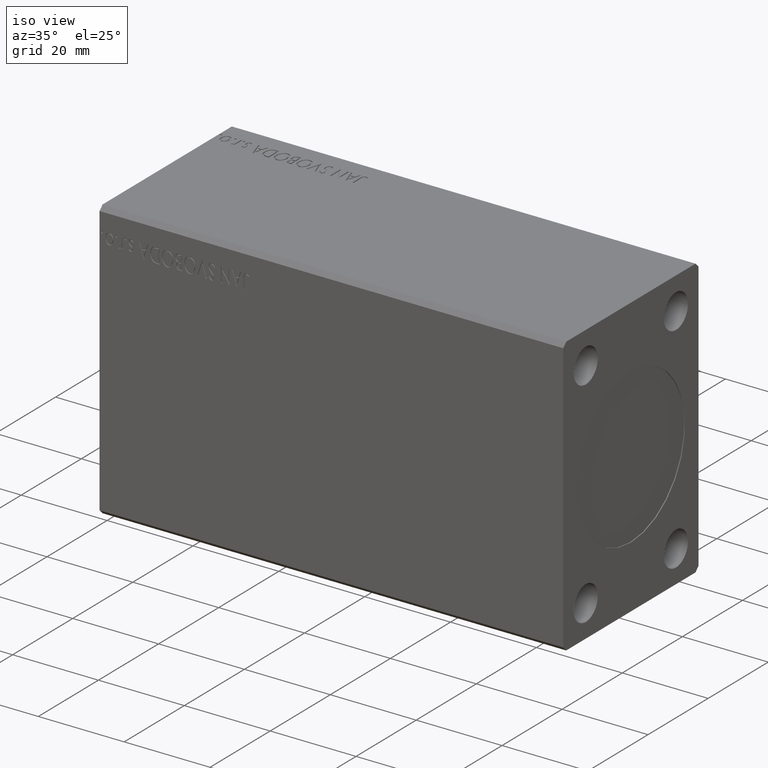
[diagram: clean part render]
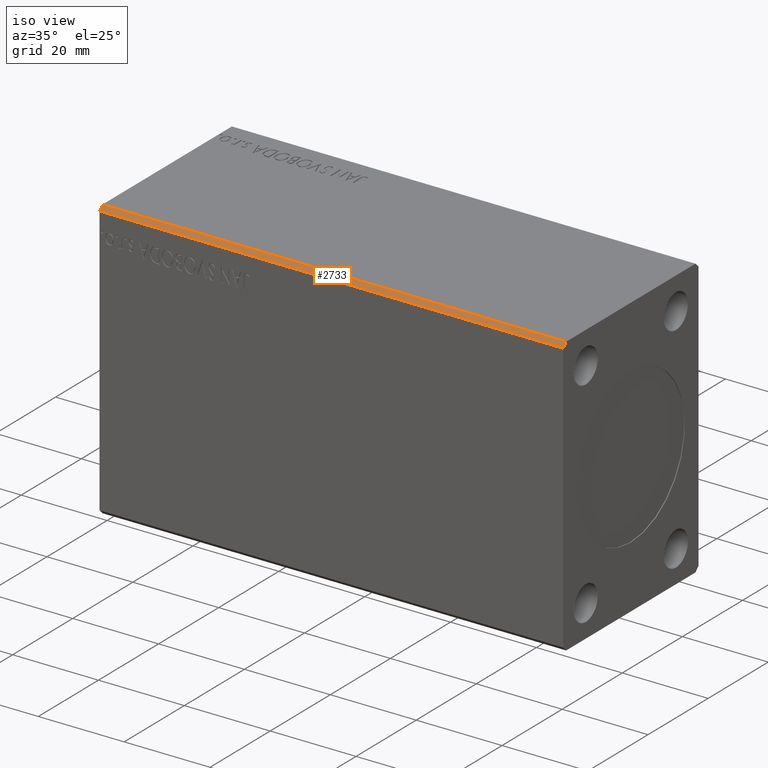
[diagram: same view with one face highlighted and labeled with its STEP entity id]
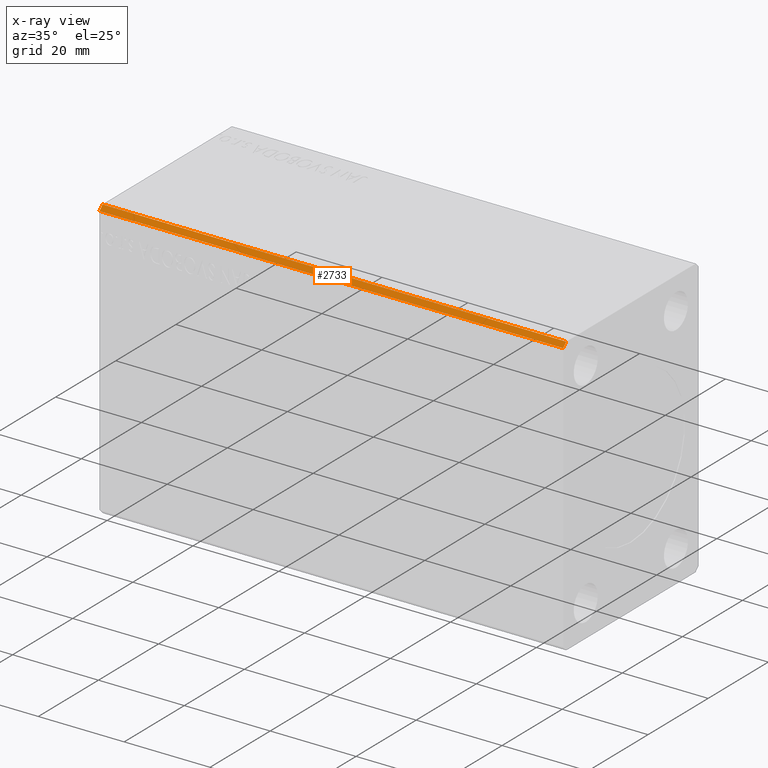
[diagram: x-ray of the same camera — body ghosted, the highlighted face saturated]
A machine part, iso view. The second image highlights one B-rep face of the part: STEP entity #2733.
The next image is the same camera in x-ray: the body ghosted, the highlighted face saturated — about 0% of this face is hidden behind the body in this view.
In plain terms, the highlighted planar face has unit normal (0, 0.7071, -0.7071).
Its self-contained STEP definition (entity closure, byte-faithful):
#2733 = ADVANCED_FACE ( 'NONE', ( #6108 ), #9473, .F. ) ;
#4452 = LINE ( 'NONE', #28077, #20763 ) ;
#5327 = EDGE_CURVE ( 'NONE', #26682, #34893, #24080, .T. ) ;
#6108 = FACE_OUTER_BOUND ( 'NONE', #27571, .T. ) ;
#6424 = VECTOR ( 'NONE', #41904, 1000.000000000000000 ) ;
#7333 = LINE ( 'NONE', #27386, #14297 ) ;
#9255 = ORIENTED_EDGE ( 'NONE', *, *, #5327, .F. ) ;
#9473 = PLANE ( 'NONE',  #11384 ) ;
#11064 = CARTESIAN_POINT ( 'NONE',  ( 108.0000000000000000, -21.50000000000001421, 32.50000000000000000 ) ) ;
#11384 = AXIS2_PLACEMENT_3D ( 'NONE', #42447, #22826, #36431 ) ;
#11715 = LINE ( 'NONE', #11064, #14523 ) ;
#12598 = VERTEX_POINT ( 'NONE', #37544 ) ;
#14062 = CARTESIAN_POINT ( 'NONE',  ( 108.0000000000000000, -22.50000000000001776, 31.50000000000000000 ) ) ;
#14297 = VECTOR ( 'NONE', #41205, 1000.000000000000000 ) ;
#14523 = VECTOR ( 'NONE', #41587, 1000.000000000000114 ) ;
#17711 = CARTESIAN_POINT ( 'NONE',  ( 0.000000000000000000, -22.50000000000001776, 31.50000000000000000 ) ) ;
#18075 = DIRECTION ( 'NONE',  ( 0.000000000000000000, -0.7071067811865474617, -0.7071067811865474617 ) ) ;
#19484 = EDGE_CURVE ( 'NONE', #12598, #26682, #11715, .T. ) ;
#20763 = VECTOR ( 'NONE', #18075, 1000.000000000000114 ) ;
#20825 = CARTESIAN_POINT ( 'NONE',  ( 108.0000000000000000, -22.50000000000001776, 31.50000000000000000 ) ) ;
#21690 = VERTEX_POINT ( 'NONE', #35451 ) ;
#22826 = DIRECTION ( 'NONE',  ( 0.000000000000000000, 0.7071067811865475727, -0.7071067811865475727 ) ) ;
#23442 = ORIENTED_EDGE ( 'NONE', *, *, #33537, .T. ) ;
#24080 = LINE ( 'NONE', #14062, #6424 ) ;
#26682 = VERTEX_POINT ( 'NONE', #20825 ) ;
#27386 = CARTESIAN_POINT ( 'NONE',  ( 108.0000000000000000, -21.50000000000001421, 32.50000000000000000 ) ) ;
#27571 = EDGE_LOOP ( 'NONE', ( #35678, #9255, #40137, #23442 ) ) ;
#28077 = CARTESIAN_POINT ( 'NONE',  ( 0.000000000000000000, -21.50000000000001421, 32.50000000000000000 ) ) ;
#33537 = EDGE_CURVE ( 'NONE', #12598, #21690, #7333, .T. ) ;
#34893 = VERTEX_POINT ( 'NONE', #17711 ) ;
#35451 = CARTESIAN_POINT ( 'NONE',  ( 0.000000000000000000, -21.50000000000001421, 32.50000000000000000 ) ) ;
#35678 = ORIENTED_EDGE ( 'NONE', *, *, #39314, .T. ) ;
#36431 = DIRECTION ( 'NONE',  ( 0.000000000000000000, 0.7071067811865474617, 0.7071067811865474617 ) ) ;
#37544 = CARTESIAN_POINT ( 'NONE',  ( 108.0000000000000000, -21.50000000000001421, 32.50000000000000000 ) ) ;
#39314 = EDGE_CURVE ( 'NONE', #21690, #34893, #4452, .T. ) ;
#40137 = ORIENTED_EDGE ( 'NONE', *, *, #19484, .F. ) ;
#41205 = DIRECTION ( 'NONE',  ( -1.000000000000000000, -0.000000000000000000, -0.000000000000000000 ) ) ;
#41587 = DIRECTION ( 'NONE',  ( 0.000000000000000000, -0.7071067811865474617, -0.7071067811865474617 ) ) ;
#41904 = DIRECTION ( 'NONE',  ( -1.000000000000000000, -0.000000000000000000, -0.000000000000000000 ) ) ;
#42447 = CARTESIAN_POINT ( 'NONE',  ( 108.0000000000000000, -21.50000000000001421, 32.50000000000000000 ) ) ;